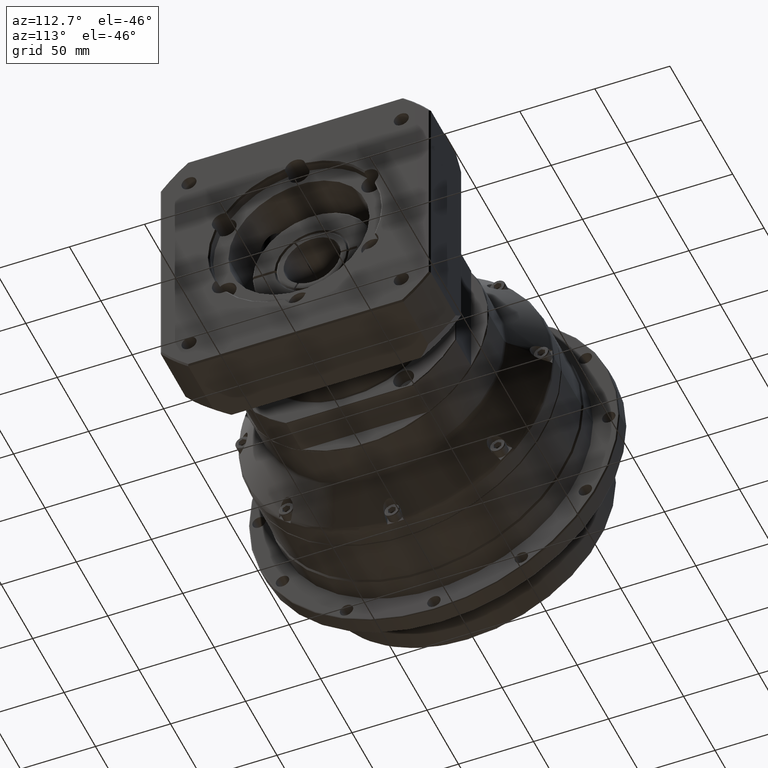
[diagram: clean part render]
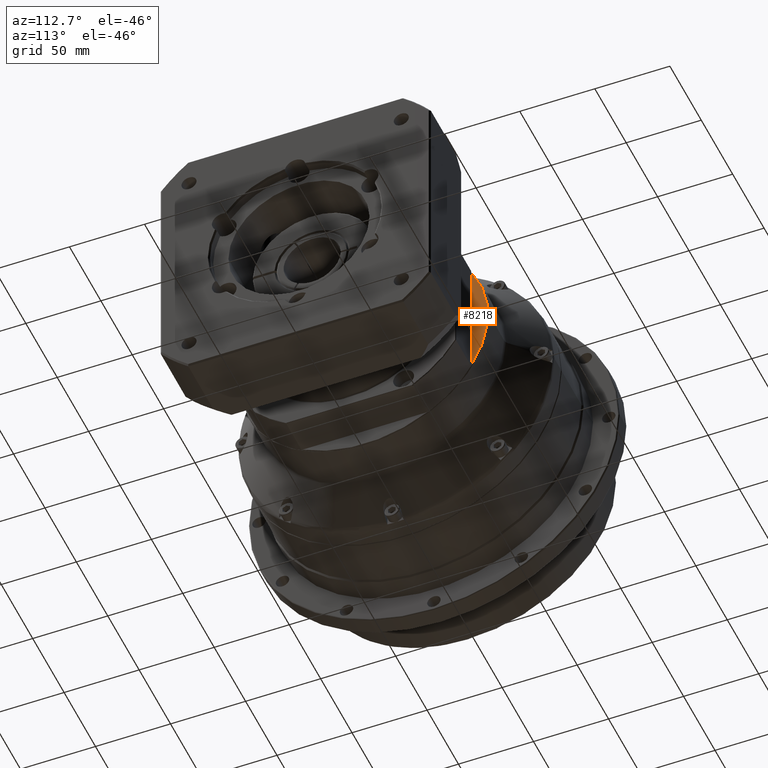
[diagram: same view with one face highlighted and labeled with its STEP entity id]
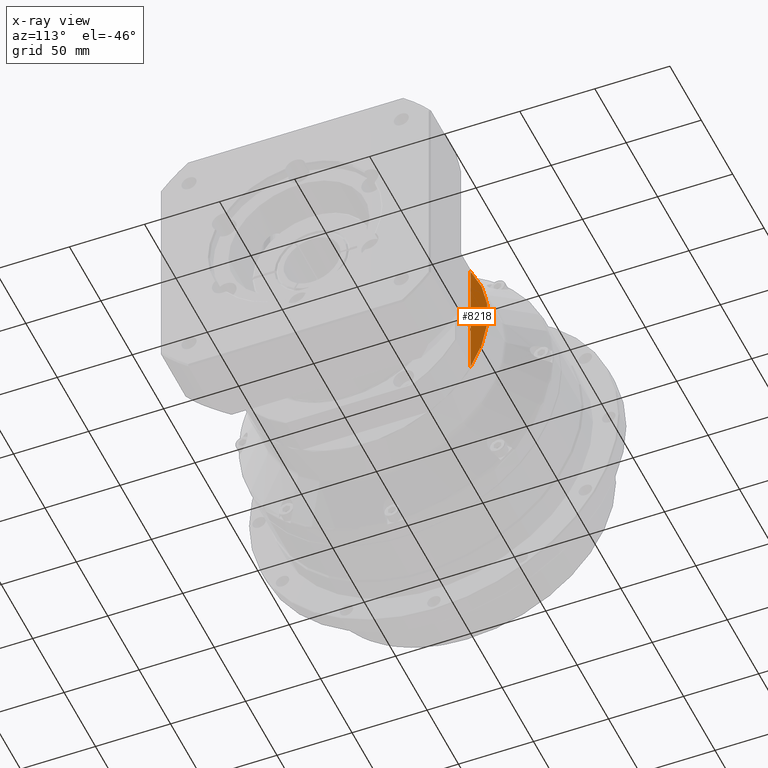
[diagram: x-ray of the same camera — body ghosted, the highlighted face saturated]
A machine part, auxiliary view. The second image highlights one B-rep face of the part: STEP entity #8218.
The next image is the same camera in x-ray: the body ghosted, the highlighted face saturated — about 0% of this face is hidden behind the body in this view.
In plain terms, the highlighted planar face has unit normal (1, -0, -0).
Its self-contained STEP definition (entity closure, byte-faithful):
#350=LINE('',#13350,#687);
#687=VECTOR('',#10587,83.7555968279135);
#2221=FACE_OUTER_BOUND('',#2943,.T.);
#2943=EDGE_LOOP('',(#6588,#6589));
#3672=CIRCLE('',#9050,82.);
#4228=VERTEX_POINT('',#13330);
#4230=VERTEX_POINT('',#13349);
#5084=EDGE_CURVE('',#4230,#4228,#350,.T.);
#5140=EDGE_CURVE('',#4230,#4228,#3672,.T.);
#6588=ORIENTED_EDGE('',*,*,#5084,.T.);
#6589=ORIENTED_EDGE('',*,*,#5140,.F.);
#7808=PLANE('',#9049);
#8218=ADVANCED_FACE('',(#2221),#7808,.T.);
#9049=AXIS2_PLACEMENT_3D('',#13630,#10733,#10734);
#9050=AXIS2_PLACEMENT_3D('',#13631,#10735,#10736);
#10587=DIRECTION('',(-3.59354030689539E-15,-3.12250225675823E-15,-1.));
#10733=DIRECTION('center_axis',(1.,-1.87800945418359E-16,-3.00786901807392E-15));
#10734=DIRECTION('ref_axis',(-2.8421709430404E-15,-2.8421709430404E-15,
-1.));
#10735=DIRECTION('center_axis',(-1.,1.87800945418359E-16,3.00786901807392E-15));
#10736=DIRECTION('ref_axis',(-1.87800945418352E-16,-1.,2.46013427385053E-15));
#13330=CARTESIAN_POINT('',(131.753312733,-44.9189375130624,131.865619657218));
#13349=CARTESIAN_POINT('',(131.753312733,-44.9189375130621,215.621216485132));
#13350=CARTESIAN_POINT('',(131.753312733,-44.9189375130621,209.243418071175));
#13630=CARTESIAN_POINT('Origin',(131.753312733,-115.418937513062,173.743418071175));
#13631=CARTESIAN_POINT('Origin',(131.753312733,-115.418937513062,173.743418071175));